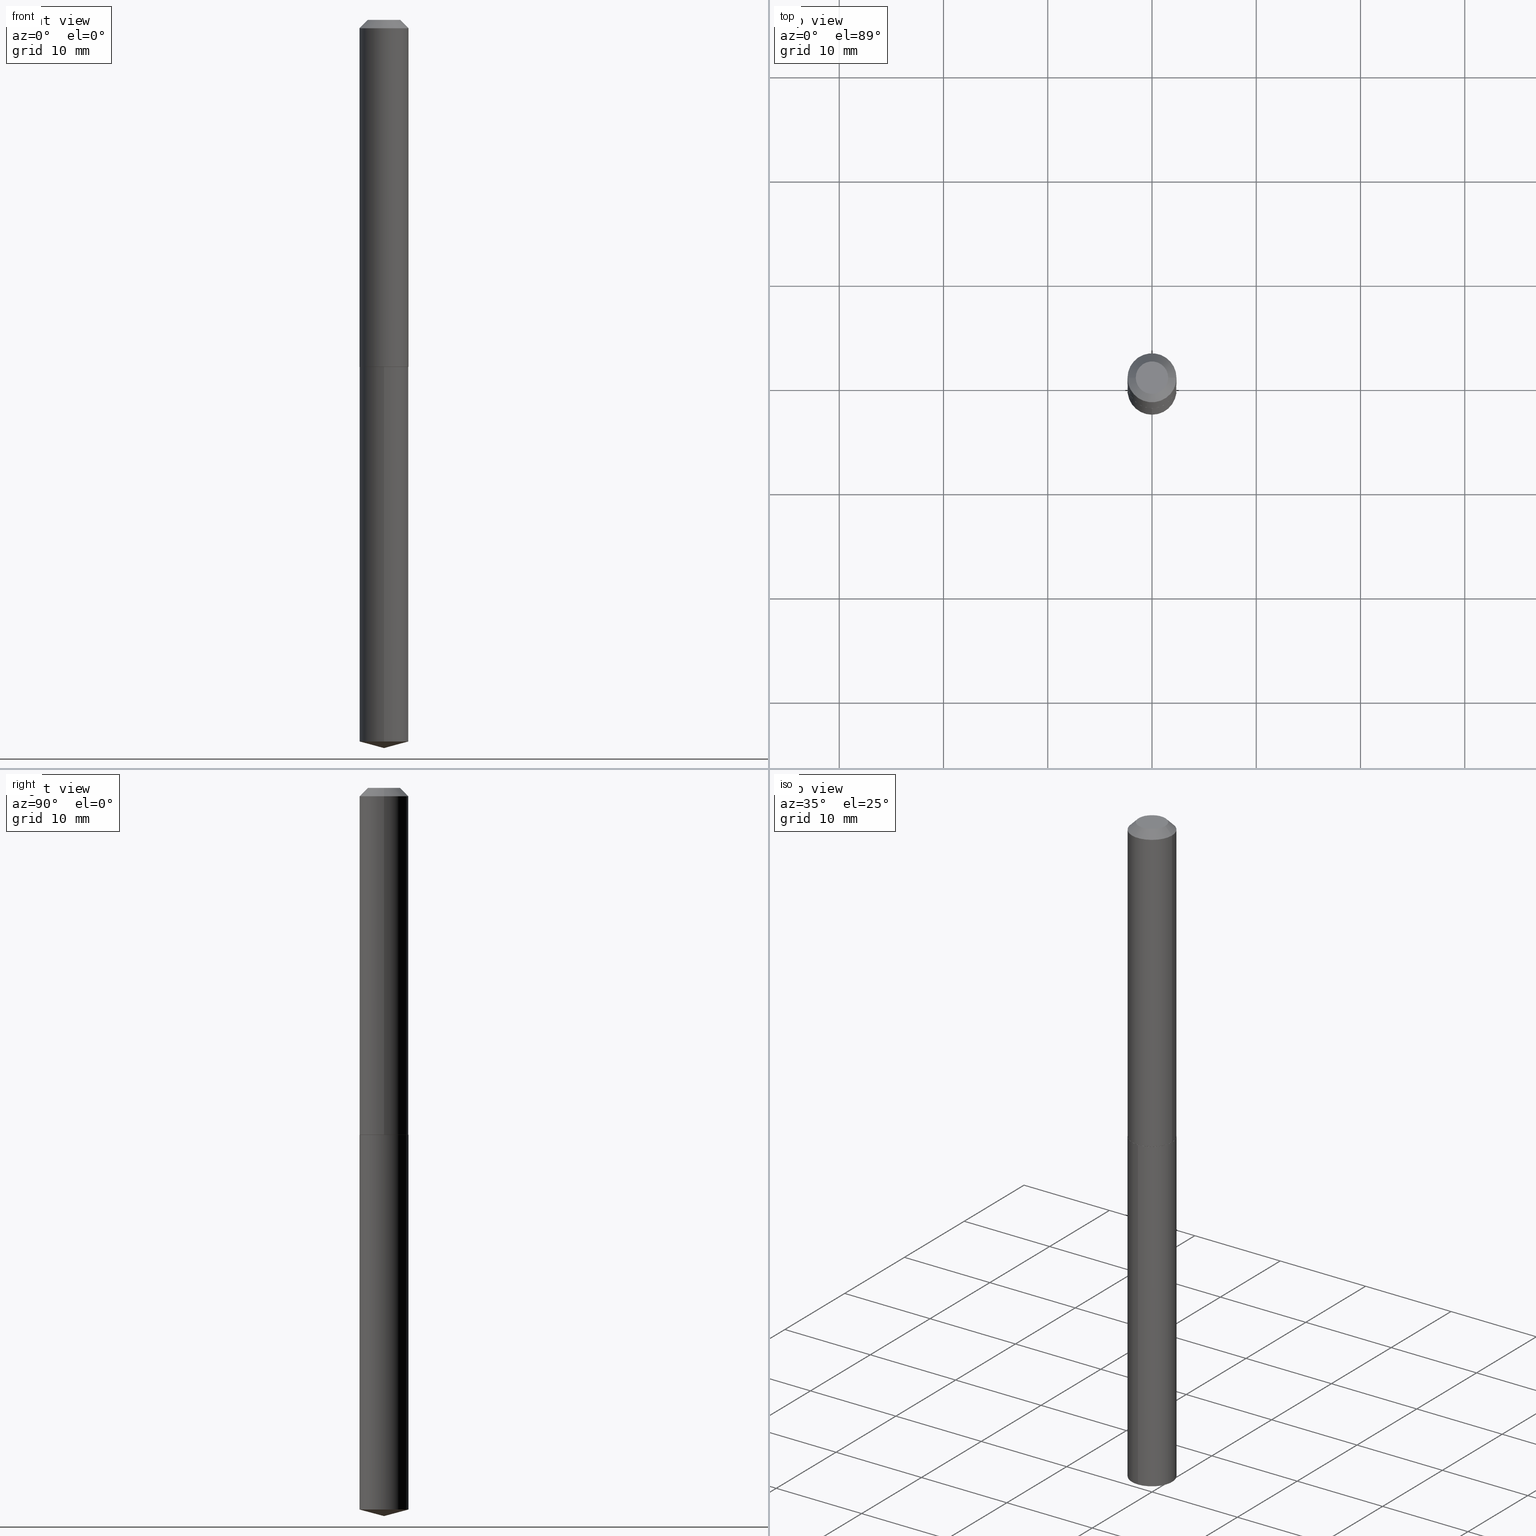
[diagram: canonical four-view strip — front | top / right | iso, engineering-drawing reading convention]
A machine part, canonical four-view strip (front | top / right | iso — engineering-drawing reading convention). The complete STEP part file that produces these views, byte-faithful:
ISO-10303-21;
HEADER;
FILE_DESCRIPTION (( 'STEP AP203' ),
    '1' );
FILE_NAME ('58039.STEP',
    '2024-04-23T00:42:35',
    ( '' ),
    ( '' ),
    'SwSTEP 2.0',
    'SolidWorks 2023',
    '' );
FILE_SCHEMA (( 'CONFIG_CONTROL_DESIGN' ));
ENDSEC;

DATA;
#1 = DIRECTION ( 'NONE',  ( -2.445468806185136597E-29, 3.491481338843145583E-15, 1.000000000000000000 ) ) ;
#2 = FACE_OUTER_BOUND ( 'NONE', #245, .T. ) ;
#3 = AXIS2_PLACEMENT_3D ( 'NONE', #276, #218, #95 ) ;
#4 = APPROVAL_DATE_TIME ( #161, #94 ) ;
#5 = ORGANIZATION ( 'UNSPECIFIED', 'UNSPECIFIED', '' ) ;
#6 = CARTESIAN_POINT ( 'NONE',  ( -6.459240476859475444E-16, -0.09250000000000457856, -1.309999999999999609 ) ) ;
#7 = EDGE_LOOP ( 'NONE', ( #28, #197, #19, #341 ) ) ;
#8 = DIRECTION ( 'NONE',  ( -6.982962677686265133E-15, -1.000000000000000000, 3.510303681827577719E-15 ) ) ;
#9 = ORIENTED_EDGE ( 'NONE', *, *, #44, .F. ) ;
#10 = EDGE_CURVE ( 'NONE', #59, #314, #199, .T. ) ;
#11 = EDGE_CURVE ( 'NONE', #278, #384, #39, .T. ) ;
#12 = DIRECTION ( 'NONE',  ( -6.745023994389845444E-15, -0.9659258262890685343, 0.2588190451025198513 ) ) ;
#13 = DIRECTION ( 'NONE',  ( -2.445429496775872932E-29, 3.491537632154564086E-15, 1.000000000000000000 ) ) ;
#14 = CIRCLE ( 'NONE', #295, 0.06125000000000000583 ) ;
#15 = CARTESIAN_POINT ( 'NONE',  ( 0.09249999999999999889, -7.550328395248286925E-16, -0.03125000000000019429 ) ) ;
#16 = DIRECTION ( 'NONE',  ( 1.000000000000000000, 0.000000000000000000, 0.000000000000000000 ) ) ;
#17 = CARTESIAN_POINT ( 'NONE',  ( 3.203564136102528897E-29, -4.573840553884520788E-15, -1.310000000000000053 ) ) ;
#18 = CIRCLE ( 'NONE', #41, 0.09249999999999999889 ) ;
#19 = ORIENTED_EDGE ( 'NONE', *, *, #44, .T. ) ;
#20 =( CONVERSION_BASED_UNIT ( 'INCH', #225 ) LENGTH_UNIT ( ) NAMED_UNIT ( #82 ) );
#21 = ORIENTED_EDGE ( 'NONE', *, *, #158, .F. ) ;
#22 = PERSON ( 'UNSPECIFIED', 'UNSPECIFIED', 'UNSPECIFIED', ('UNSPECIFIED'), ('UNSPECIFIED'), ('UNSPECIFIED') ) ;
#23 = VERTEX_POINT ( 'NONE', #131 ) ;
#24 = PERSON_AND_ORGANIZATION_ROLE ( 'creator' ) ;
#25 = AXIS2_PLACEMENT_3D ( 'NONE', #231, #293, #375 ) ;
#26 = ORIENTED_EDGE ( 'NONE', *, *, #204, .T. ) ;
#27 = CALENDAR_DATE ( 2024, 22, 4 ) ;
#28 = ORIENTED_EDGE ( 'NONE', *, *, #70, .F. ) ;
#29 = COORDINATED_UNIVERSAL_TIME_OFFSET ( 5, 0, .BEHIND. ) ;
#30 = CARTESIAN_POINT ( 'NONE',  ( 0.000000000000000000, 0.000000000000000000, 0.000000000000000000 ) ) ;
#31 = CYLINDRICAL_SURFACE ( 'NONE', #3, 0.09249999999999999889 ) ;
#32 = CALENDAR_DATE ( 2024, 22, 4 ) ;
#33 = ADVANCED_FACE ( 'NONE', ( #92 ), #31, .T. ) ;
#34 = DIRECTION ( 'NONE',  ( -2.445468806185136597E-29, 3.491481338843145583E-15, 1.000000000000000000 ) ) ;
#35 = DIRECTION ( 'NONE',  ( -6.982962677686265922E-15, -1.000000000000000000, 2.953349182339743999E-15 ) ) ;
#36 = CIRCLE ( 'NONE', #50, 0.09200000000000020661 ) ;
#37 = EDGE_CURVE ( 'NONE', #248, #314, #189, .T. ) ;
#38 = DIRECTION ( 'NONE',  ( -2.445429496775872932E-29, 3.491537632154564086E-15, 1.000000000000000000 ) ) ;
#39 = LINE ( 'NONE', #247, #325 ) ;
#40 = CARTESIAN_POINT ( 'NONE',  ( 0.09249999999999999889, -7.437048566327157189E-16, -0.03125000000000019429 ) ) ;
#41 = AXIS2_PLACEMENT_3D ( 'NONE', #258, #13, #206 ) ;
#42 = DIRECTION ( 'NONE',  ( -0.7071067811867889352, 7.493145998871226640E-15, 0.7071067811863060992 ) ) ;
#43 = DIRECTION ( 'NONE',  ( 6.982962677686265922E-15, 1.000000000000000000, -3.491537632154564086E-15 ) ) ;
#44 = EDGE_CURVE ( 'NONE', #184, #363, #129, .T. ) ;
#45 = CARTESIAN_POINT ( 'NONE',  ( 6.725035009892370584E-29, -9.601580999949136548E-15, -2.750000000000000000 ) ) ;
#46 = FACE_OUTER_BOUND ( 'NONE', #226, .T. ) ;
#47 =( NAMED_UNIT ( * ) SI_UNIT ( $, .STERADIAN. ) SOLID_ANGLE_UNIT ( ) );
#48 = DIRECTION ( 'NONE',  ( -2.445468806185136597E-29, 3.491481338843145583E-15, 1.000000000000000000 ) ) ;
#49 = CC_DESIGN_PERSON_AND_ORGANIZATION_ASSIGNMENT ( #240, #117, ( #168 ) ) ;
#50 = AXIS2_PLACEMENT_3D ( 'NONE', #288, #106, #322 ) ;
#51 = APPROVAL_PERSON_ORGANIZATION ( #264, #124, #305 ) ;
#52 = ORIENTED_EDGE ( 'NONE', *, *, #323, .F. ) ;
#53 = DATE_TIME_ROLE ( 'creation_date' ) ;
#54 = FACE_OUTER_BOUND ( 'NONE', #374, .T. ) ;
#55 = EDGE_CURVE ( 'NONE', #210, #59, #279, .T. ) ;
#56 = DIRECTION ( 'NONE',  ( -2.445468806185136597E-29, 3.491481338843145583E-15, 1.000000000000000000 ) ) ;
#57 = AXIS2_PLACEMENT_3D ( 'NONE', #175, #284, #352 ) ;
#58 = CC_DESIGN_APPROVAL ( #94, ( #357 ) ) ;
#59 = VERTEX_POINT ( 'NONE', #304 ) ;
#60 = PERSON_AND_ORGANIZATION ( #22, #5 ) ;
#61 = CARTESIAN_POINT ( 'NONE',  ( -6.459240476859475444E-16, -0.09250000000000457856, -1.309999999999999609 ) ) ;
#62 = ORIENTED_EDGE ( 'NONE', *, *, #37, .T. ) ;
#63 = PERSON_AND_ORGANIZATION_ROLE ( 'design_owner' ) ;
#64 = LINE ( 'NONE', #93, #185 ) ;
#65 = EDGE_LOOP ( 'NONE', ( #326, #220, #85 ) ) ;
#66 = DIRECTION ( 'NONE',  ( -2.445429496775872932E-29, 3.491537632154564086E-15, 1.000000000000000000 ) ) ;
#67 = DIRECTION ( 'NONE',  ( 0.7071067811865453523, -7.319954787623248157E-15, -0.7071067811865496822 ) ) ;
#68 = AXIS2_PLACEMENT_3D ( 'NONE', #17, #378, #253 ) ;
#69 = ORIENTED_EDGE ( 'NONE', *, *, #222, .T. ) ;
#70 = EDGE_CURVE ( 'NONE', #262, #209, #96, .T. ) ;
#71 = DIRECTION ( 'NONE',  ( -2.445429496775872932E-29, 3.491537632154564086E-15, 1.000000000000000000 ) ) ;
#72 = CARTESIAN_POINT ( 'NONE',  ( 0.09250000000000017930, -5.218018860901080849E-15, -1.309500000000000108 ) ) ;
#73 = CARTESIAN_POINT ( 'NONE',  ( 0.09250000000000008216, -6.459240476859802821E-16, 4.510463517611244952E-30 ) ) ;
#74 = CIRCLE ( 'NONE', #211, 0.06125000000000000583 ) ;
#75 = CARTESIAN_POINT ( 'NONE',  ( 7.642090019328598283E-31, -1.091087918388489651E-16, -0.03125000000000019429 ) ) ;
#76 = CARTESIAN_POINT ( 'NONE',  ( 0.09200000000000020661, -5.216273120231657767E-15, -1.309999999999999609 ) ) ;
#77 = DIRECTION ( 'NONE',  ( -2.445468806185136597E-29, 3.491481338843145583E-15, 1.000000000000000000 ) ) ;
#78 = AXIS2_PLACEMENT_3D ( 'NONE', #75, #48, #257 ) ;
#79 = LOCAL_TIME ( 20, 42, 35.00000000000000000, #150 ) ;
#80 = DIRECTION ( 'NONE',  ( -2.445468806185136597E-29, 3.491481338843145583E-15, 1.000000000000000000 ) ) ;
#81 = APPLICATION_CONTEXT ( 'configuration controlled 3d designs of mechanical parts and assemblies' ) ;
#82 = DIMENSIONAL_EXPONENTS ( 1.000000000000000000, 0.000000000000000000, 0.000000000000000000, 0.000000000000000000, 0.000000000000000000, 0.000000000000000000, 0.000000000000000000 ) ;
#83 = AXIS2_PLACEMENT_3D ( 'NONE', #319, #172, #86 ) ;
#84 = AXIS2_PLACEMENT_3D ( 'NONE', #238, #362, #230 ) ;
#85 = ORIENTED_EDGE ( 'NONE', *, *, #222, .F. ) ;
#86 = DIRECTION ( 'NONE',  ( 1.000000000000000000, -6.982962677686264344E-15, 0.000000000000000000 ) ) ;
#87 = APPROVAL_ROLE ( '' ) ;
#88 = DIRECTION ( 'NONE',  ( -1.000000000000000000, 6.982962677686265922E-15, -4.876176775795935793E-29 ) ) ;
#89 = DATE_AND_TIME ( #382, #79 ) ;
#90 = CYLINDRICAL_SURFACE ( 'NONE', #332, 0.09250000000000008216 ) ;
#91 = VECTOR ( 'NONE', #208, 39.37007874015748143 ) ;
#92 = FACE_OUTER_BOUND ( 'NONE', #155, .T. ) ;
#93 = CARTESIAN_POINT ( 'NONE',  ( -0.09250000000000008216, 6.572520305780932557E-16, -4.550014958485792374E-30 ) ) ;
#94 = APPROVAL ( #333, 'UNSPECIFIED' ) ;
#95 = DIRECTION ( 'NONE',  ( -6.982962677686265922E-15, -1.000000000000000000, 2.953349182339743999E-15 ) ) ;
#96 = LINE ( 'NONE', #40, #223 ) ;
#97 = ORIENTED_EDGE ( 'NONE', *, *, #132, .T. ) ;
#98 = CIRCLE ( 'NONE', #68, 0.09249999999999999889 ) ;
#99 = LOCAL_TIME ( 20, 42, 35.00000000000000000, #120 ) ;
#100 = CARTESIAN_POINT ( 'NONE',  ( 0.000000000000000000, 0.000000000000000000, 0.000000000000000000 ) ) ;
#101 = DESIGN_CONTEXT ( 'detailed design', #81, 'design' ) ;
#102 = CARTESIAN_POINT ( 'NONE',  ( 7.642090019328598283E-31, -1.091087918388489651E-16, -0.03125000000000019429 ) ) ;
#103 = ADVANCED_FACE ( 'NONE', ( #2 ), #367, .T. ) ;
#104 = FACE_OUTER_BOUND ( 'NONE', #187, .T. ) ;
#105 = AXIS2_PLACEMENT_3D ( 'NONE', #221, #366, #35 ) ;
#106 = DIRECTION ( 'NONE',  ( -2.445468806185136597E-29, 3.491481338843145583E-15, 1.000000000000000000 ) ) ;
#107 = CC_DESIGN_DATE_AND_TIME_ASSIGNMENT ( #274, #302, ( #168 ) ) ;
#108 = CARTESIAN_POINT ( 'NONE',  ( -6.459240476859128345E-16, -0.09250000000000949130, -2.725214699700120757 ) ) ;
#109 = FACE_OUTER_BOUND ( 'NONE', #242, .T. ) ;
#110 = CIRCLE ( 'NONE', #373, 0.09250000000000017930 ) ;
#111 = APPROVAL ( #369, 'UNSPECIFIED' ) ;
#112 = ORIENTED_EDGE ( 'NONE', *, *, #11, .F. ) ;
#113 = CARTESIAN_POINT ( 'NONE',  ( -4.492253318864008525E-48, 6.413747168845487133E-34, 1.836970198721037299E-19 ) ) ;
#114 = CIRCLE ( 'NONE', #78, 0.09249999999999999889 ) ;
#115 = ORIENTED_EDGE ( 'NONE', *, *, #204, .F. ) ;
#116 = ADVANCED_FACE ( 'NONE', ( #163 ), #372, .T. ) ;
#117 = PERSON_AND_ORGANIZATION_ROLE ( 'classification_officer' ) ;
#118 = FACE_OUTER_BOUND ( 'NONE', #65, .T. ) ;
#119 = EDGE_LOOP ( 'NONE', ( #195, #239 ) ) ;
#120 = COORDINATED_UNIVERSAL_TIME_OFFSET ( 5, 0, .BEHIND. ) ;
#121 = DIRECTION ( 'NONE',  ( -6.982962677686265922E-15, -1.000000000000000000, 5.906698364679487997E-15 ) ) ;
#122 = ORIENTED_EDGE ( 'NONE', *, *, #215, .F. ) ;
#123 = PERSON_AND_ORGANIZATION ( #22, #5 ) ;
#124 = APPROVAL ( #182, 'UNSPECIFIED' ) ;
#125 = CC_DESIGN_SECURITY_CLASSIFICATION ( #168, ( #357 ) ) ;
#126 = CARTESIAN_POINT ( 'NONE',  ( -8.955176923011001881E-28, 1.278604567579611010E-13, 36.62007874015748143 ) ) ;
#127 = PERSON_AND_ORGANIZATION ( #22, #5 ) ;
#128 = CARTESIAN_POINT ( 'NONE',  ( 3.202341401699436656E-29, -4.572094813215099285E-15, -1.309500000000000108 ) ) ;
#129 = LINE ( 'NONE', #250, #294 ) ;
#130 =( LENGTH_UNIT ( ) NAMED_UNIT ( * ) SI_UNIT ( $, .METRE. ) );
#131 = CARTESIAN_POINT ( 'NONE',  ( 6.724931116133648671E-29, -9.601728488425049658E-15, -2.750000000000000000 ) ) ;
#132 = EDGE_CURVE ( 'NONE', #23, #248, #346, .T. ) ;
#133 = EDGE_LOOP ( 'NONE', ( #301, #380, #198, #344 ) ) ;
#134 = VECTOR ( 'NONE', #71, 39.37007874015748143 ) ;
#135 = ORIENTED_EDGE ( 'NONE', *, *, #10, .T. ) ;
#136 = DIRECTION ( 'NONE',  ( 1.000000000000000000, -6.982962677686272233E-15, 0.000000000000000000 ) ) ;
#137 = ADVANCED_BREP_SHAPE_REPRESENTATION ( '58039', ( #159, #156, #275 ), #203 ) ;
#138 = ADVANCED_FACE ( 'NONE', ( #109 ), #356, .T. ) ;
#139 = CARTESIAN_POINT ( 'NONE',  ( 6.724931116133649792E-29, -9.601728488425049658E-15, -2.750000000000000000 ) ) ;
#140 = CIRCLE ( 'NONE', #315, 0.09249999999999999889 ) ;
#141 = LOCAL_TIME ( 20, 42, 35.00000000000000000, #29 ) ;
#142 = CARTESIAN_POINT ( 'NONE',  ( 3.203564136102528897E-29, -4.573840553884520788E-15, -1.310000000000000053 ) ) ;
#143 = CARTESIAN_POINT ( 'NONE',  ( -0.09250000000000017930, -3.914842782637005634E-15, -1.309500000000000108 ) ) ;
#144 = PRODUCT_DEFINITION ( 'UNKNOWN', '', #357, #101 ) ;
#145 = UNCERTAINTY_MEASURE_WITH_UNIT (LENGTH_MEASURE( 1.000000000000000082E-05 ), #20, 'distance_accuracy_value', 'NONE');
#146 = ORIENTED_EDGE ( 'NONE', *, *, #345, .F. ) ;
#147 = ORIENTED_EDGE ( 'NONE', *, *, #10, .F. ) ;
#148 = CC_DESIGN_PERSON_AND_ORGANIZATION_ASSIGNMENT ( #188, #24, ( #357 ) ) ;
#149 = ORIENTED_EDGE ( 'NONE', *, *, #181, .T. ) ;
#150 = COORDINATED_UNIVERSAL_TIME_OFFSET ( 5, 0, .BEHIND. ) ;
#151 = AXIS2_PLACEMENT_3D ( 'NONE', #142, #169, #43 ) ;
#152 = FACE_OUTER_BOUND ( 'NONE', #192, .T. ) ;
#153 = ORIENTED_EDGE ( 'NONE', *, *, #306, .T. ) ;
#154 = APPROVAL_ROLE ( '' ) ;
#155 = EDGE_LOOP ( 'NONE', ( #69, #224, #312, #339 ) ) ;
#156 = MANIFOLD_SOLID_BREP ( 'Body-Move/Copy2[2]', #259 ) ;
#157 = APPLICATION_PROTOCOL_DEFINITION ( 'international standard', 'config_control_design', 1994, #81 ) ;
#158 = EDGE_CURVE ( 'NONE', #209, #363, #114, .T. ) ;
#159 = MANIFOLD_SOLID_BREP ( 'Body-Move/Copy2[1]', #216 ) ;
#160 = DIRECTION ( 'NONE',  ( -2.445429496775872932E-29, 3.491537632154564086E-15, 1.000000000000000000 ) ) ;
#161 = DATE_AND_TIME ( #32, #99 ) ;
#162 = ORIENTED_EDGE ( 'NONE', *, *, #55, .F. ) ;
#163 = FACE_OUTER_BOUND ( 'NONE', #296, .T. ) ;
#164 = DIRECTION ( 'NONE',  ( 0.7071067811867889352, -2.468850131084785360E-15, 0.7071067811863060992 ) ) ;
#165 = ORIENTED_EDGE ( 'NONE', *, *, #306, .F. ) ;
#166 = CONICAL_SURFACE ( 'NONE', #217, 0.09250000000000017930, 0.7853981633977896726 ) ;
#167 = EDGE_CURVE ( 'NONE', #314, #59, #98, .T. ) ;
#168 = SECURITY_CLASSIFICATION ( '', '', #385 ) ;
#169 = DIRECTION ( 'NONE',  ( 2.445429496775872371E-29, -3.491537632154564086E-15, -1.000000000000000000 ) ) ;
#170 = DIRECTION ( 'NONE',  ( 6.863315791527699781E-15, 0.9659258262890704216, 0.2588190451025130789 ) ) ;
#171 = MECHANICAL_CONTEXT ( 'NONE', #347, 'mechanical' ) ;
#172 = DIRECTION ( 'NONE',  ( -2.445468806185136597E-29, 3.491481338843145583E-15, 1.000000000000000000 ) ) ;
#173 = VECTOR ( 'NONE', #12, 39.37007874015748143 ) ;
#174 = CC_DESIGN_APPROVAL ( #124, ( #144 ) ) ;
#175 = CARTESIAN_POINT ( 'NONE',  ( 7.642090019328598283E-31, -1.091087918388489651E-16, -0.03125000000000019429 ) ) ;
#176 = EDGE_CURVE ( 'NONE', #23, #210, #286, .T. ) ;
#177 = DIRECTION ( 'NONE',  ( 1.000000000000000000, -6.982962677686267499E-15, 4.876190086226892022E-29 ) ) ;
#178 = ADVANCED_FACE ( 'NONE', ( #104 ), #291, .F. ) ;
#179 = CIRCLE ( 'NONE', #299, 0.09250000000000017930 ) ;
#180 = AXIS2_PLACEMENT_3D ( 'NONE', #191, #183, #328 ) ;
#181 = EDGE_CURVE ( 'NONE', #273, #384, #110, .T. ) ;
#182 = APPROVAL_STATUS ( 'not_yet_approved' ) ;
#183 = DIRECTION ( 'NONE',  ( -2.445429496775872932E-29, 3.491537632154564086E-15, 1.000000000000000000 ) ) ;
#184 = VERTEX_POINT ( 'NONE', #376 ) ;
#185 = VECTOR ( 'NONE', #386, 39.37007874015748143 ) ;
#186 = LOCAL_TIME ( 20, 42, 35.00000000000000000, #361 ) ;
#187 = EDGE_LOOP ( 'NONE', ( #270, #135 ) ) ;
#188 = PERSON_AND_ORGANIZATION ( #22, #5 ) ;
#189 = LINE ( 'NONE', #6, #348 ) ;
#190 = APPROVAL_DATE_TIME ( #388, #124 ) ;
#191 = CARTESIAN_POINT ( 'NONE',  ( -8.955176923011001881E-28, 1.278604567579611010E-13, 36.62007874015748143 ) ) ;
#192 = EDGE_LOOP ( 'NONE', ( #313, #331, #165, #112 ) ) ;
#193 = DIRECTION ( 'NONE',  ( 1.000000000000000000, -6.982962677686267499E-15, 4.876176775795936353E-29 ) ) ;
#194 = AXIS2_PLACEMENT_3D ( 'NONE', #353, #379, #377 ) ;
#195 = ORIENTED_EDGE ( 'NONE', *, *, #280, .F. ) ;
#196 = CC_DESIGN_DATE_AND_TIME_ASSIGNMENT ( #89, #53, ( #144 ) ) ;
#197 = ORIENTED_EDGE ( 'NONE', *, *, #370, .F. ) ;
#198 = ORIENTED_EDGE ( 'NONE', *, *, #11, .T. ) ;
#199 = CIRCLE ( 'NONE', #105, 0.09249999999999999889 ) ;
#200 = EDGE_CURVE ( 'NONE', #363, #209, #235, .T. ) ;
#201 = CARTESIAN_POINT ( 'NONE',  ( -0.09250000000000017930, -3.914842782637005634E-15, -1.309500000000000108 ) ) ;
#202 = AXIS2_PLACEMENT_3D ( 'NONE', #214, #390, #88 ) ;
#203 =( GEOMETRIC_REPRESENTATION_CONTEXT ( 3 ) GLOBAL_UNCERTAINTY_ASSIGNED_CONTEXT ( ( #145 ) ) GLOBAL_UNIT_ASSIGNED_CONTEXT ( ( #20, #290, #47 ) ) REPRESENTATION_CONTEXT ( 'NONE', 'WORKASPACE' ) );
#204 = EDGE_CURVE ( 'NONE', #262, #184, #74, .T. ) ;
#205 = CARTESIAN_POINT ( 'NONE',  ( 3.202341401699436656E-29, -4.572094813215099285E-15, -1.309500000000000108 ) ) ;
#206 = DIRECTION ( 'NONE',  ( -6.982962677686265922E-15, -1.000000000000000000, 5.906698364679487997E-15 ) ) ;
#207 = CARTESIAN_POINT ( 'NONE',  ( 0.06125000000000000583, -5.819551794981109879E-16, 1.836970198756335021E-19 ) ) ;
#208 = DIRECTION ( 'NONE',  ( -2.445468806185136877E-29, 3.491481338843145188E-15, 1.000000000000000000 ) ) ;
#209 = VERTEX_POINT ( 'NONE', #15 ) ;
#210 = VERTEX_POINT ( 'NONE', #229 ) ;
#211 = AXIS2_PLACEMENT_3D ( 'NONE', #317, #77, #177 ) ;
#212 = ORIENTED_EDGE ( 'NONE', *, *, #158, .T. ) ;
#213 = CALENDAR_DATE ( 2024, 22, 4 ) ;
#214 = CARTESIAN_POINT ( 'NONE',  ( -2.246126659432004262E-48, 3.206873584422743567E-34, 9.184850993605186494E-20 ) ) ;
#215 = EDGE_CURVE ( 'NONE', #384, #209, #350, .T. ) ;
#216 = CLOSED_SHELL ( 'NONE', ( #33, #359, #103, #138, #178 ) ) ;
#217 = AXIS2_PLACEMENT_3D ( 'NONE', #360, #310, #383 ) ;
#218 = DIRECTION ( 'NONE',  ( -2.445429496775872932E-29, 3.491537632154564086E-15, 1.000000000000000000 ) ) ;
#219 = COORDINATED_UNIVERSAL_TIME_OFFSET ( 5, 0, .BEHIND. ) ;
#220 = ORIENTED_EDGE ( 'NONE', *, *, #176, .T. ) ;
#221 = CARTESIAN_POINT ( 'NONE',  ( 3.203564136102528897E-29, -4.573840553884520788E-15, -1.310000000000000053 ) ) ;
#222 = EDGE_CURVE ( 'NONE', #248, #210, #18, .T. ) ;
#223 = VECTOR ( 'NONE', #67, 39.37007874015748143 ) ;
#224 = ORIENTED_EDGE ( 'NONE', *, *, #55, .T. ) ;
#225 = LENGTH_MEASURE_WITH_UNIT ( LENGTH_MEASURE( 0.02539999999999999897 ), #130 );
#226 = EDGE_LOOP ( 'NONE', ( #115, #336, #212, #9 ) ) ;
#227 = LINE ( 'NONE', #201, #255 ) ;
#228 = PRODUCT ( '58039', '58039', '', ( #171 ) ) ;
#229 = CARTESIAN_POINT ( 'NONE',  ( 6.572520305781590270E-16, 0.09249999999999047873, -2.725214699700122090 ) ) ;
#230 = DIRECTION ( 'NONE',  ( 1.000000000000000000, -6.982962677686265922E-15, 4.876176775795935793E-29 ) ) ;
#231 = CARTESIAN_POINT ( 'NONE',  ( 7.642090019328598283E-31, -1.091087918388489651E-16, -0.03125000000000019429 ) ) ;
#232 = DIRECTION ( 'NONE',  ( -2.445468806185136597E-29, 3.491481338843145583E-15, 1.000000000000000000 ) ) ;
#233 = EDGE_CURVE ( 'NONE', #387, #278, #36, .T. ) ;
#234 = APPLICATION_PROTOCOL_DEFINITION ( 'international standard', 'config_control_design', 1994, #347 ) ;
#235 = CIRCLE ( 'NONE', #358, 0.09249999999999999889 ) ;
#236 = CARTESIAN_POINT ( 'NONE',  ( 6.664371907020014015E-29, -9.515115935465815884E-15, -2.725214699700121646 ) ) ;
#237 = CALENDAR_DATE ( 2024, 22, 4 ) ;
#238 = CARTESIAN_POINT ( 'NONE',  ( 3.203564136102528897E-29, -4.573840553884520788E-15, -1.310000000000000053 ) ) ;
#239 = ORIENTED_EDGE ( 'NONE', *, *, #233, .F. ) ;
#240 = PERSON_AND_ORGANIZATION ( #22, #5 ) ;
#241 = CARTESIAN_POINT ( 'NONE',  ( 3.202341401699436656E-29, -4.572094813215099285E-15, -1.309500000000000108 ) ) ;
#242 = EDGE_LOOP ( 'NONE', ( #162, #298, #62, #147 ) ) ;
#243 = SHAPE_DEFINITION_REPRESENTATION ( #365, #137 ) ;
#244 = AXIS2_PLACEMENT_3D ( 'NONE', #241, #56, #364 ) ;
#245 = EDGE_LOOP ( 'NONE', ( #263, #97, #52 ) ) ;
#246 = DATE_AND_TIME ( #213, #141 ) ;
#247 = CARTESIAN_POINT ( 'NONE',  ( 0.09250000000000017930, -5.218018860901080849E-15, -1.309500000000000108 ) ) ;
#248 = VERTEX_POINT ( 'NONE', #108 ) ;
#249 = CIRCLE ( 'NONE', #83, 0.09200000000000020661 ) ;
#250 = CARTESIAN_POINT ( 'NONE',  ( -0.09249999999999999889, 5.368152558471307870E-16, -0.03125000000000019429 ) ) ;
#251 = PRODUCT_RELATED_PRODUCT_CATEGORY ( 'detail', '', ( #228 ) ) ;
#252 = DIRECTION ( 'NONE',  ( 1.000000000000000000, -6.982962677686267499E-15, 4.876176775795936353E-29 ) ) ;
#253 = DIRECTION ( 'NONE',  ( -6.982962677686265922E-15, -1.000000000000000000, 2.953349182339743999E-15 ) ) ;
#254 = DIRECTION ( 'NONE',  ( 1.000000000000000000, -6.982962677686266711E-15, 0.000000000000000000 ) ) ;
#255 = VECTOR ( 'NONE', #42, 39.37007874015748143 ) ;
#256 = CARTESIAN_POINT ( 'NONE',  ( 0.000000000000000000, 0.000000000000000000, 0.000000000000000000 ) ) ;
#257 = DIRECTION ( 'NONE',  ( 1.000000000000000000, -6.982962677686266711E-15, 0.000000000000000000 ) ) ;
#258 = CARTESIAN_POINT ( 'NONE',  ( 6.664371907020014015E-29, -9.515115935465815884E-15, -2.725214699700121646 ) ) ;
#259 = CLOSED_SHELL ( 'NONE', ( #271, #116, #335, #381, #354, #351, #260, #285 ) ) ;
#260 = ADVANCED_FACE ( 'NONE', ( #316 ), #355, .T. ) ;
#261 = EDGE_CURVE ( 'NONE', #387, #273, #227, .T. ) ;
#262 = VERTEX_POINT ( 'NONE', #207 ) ;
#263 = ORIENTED_EDGE ( 'NONE', *, *, #176, .F. ) ;
#264 = PERSON_AND_ORGANIZATION ( #22, #5 ) ;
#265 = ORIENTED_EDGE ( 'NONE', *, *, #215, .T. ) ;
#266 = PERSON_AND_ORGANIZATION_ROLE ( 'design_supplier' ) ;
#267 = APPROVAL_PERSON_ORGANIZATION ( #123, #94, #154 ) ;
#268 = PLANE ( 'NONE',  #84 ) ;
#269 = PERSON_AND_ORGANIZATION ( #22, #5 ) ;
#270 = ORIENTED_EDGE ( 'NONE', *, *, #167, .T. ) ;
#271 = ADVANCED_FACE ( 'NONE', ( #46 ), #289, .T. ) ;
#272 = DIRECTION ( 'NONE',  ( 1.000000000000000000, -6.982962677686267499E-15, 4.876190086226892022E-29 ) ) ;
#273 = VERTEX_POINT ( 'NONE', #143 ) ;
#274 = DATE_AND_TIME ( #27, #186 ) ;
#275 = AXIS2_PLACEMENT_3D ( 'NONE', #256, #292, #16 ) ;
#276 = CARTESIAN_POINT ( 'NONE',  ( 3.203564136102528897E-29, -4.573840553884520788E-15, -1.310000000000000053 ) ) ;
#277 = CARTESIAN_POINT ( 'NONE',  ( -0.09200000000000020661, -3.917492009811115258E-15, -1.309999999999999609 ) ) ;
#278 = VERTEX_POINT ( 'NONE', #76 ) ;
#279 = LINE ( 'NONE', #283, #134 ) ;
#280 = EDGE_CURVE ( 'NONE', #278, #387, #249, .T. ) ;
#281 = CONICAL_SURFACE ( 'NONE', #244, 0.09250000000000017930, 0.7853981633977896726 ) ;
#282 = CONICAL_SURFACE ( 'NONE', #180, 146.9311341562576274, 1.308996938995751647 ) ;
#283 = CARTESIAN_POINT ( 'NONE',  ( 6.572520305781246129E-16, 0.09249999999999543310, -1.310000000000000275 ) ) ;
#284 = DIRECTION ( 'NONE',  ( 2.445468806185136597E-29, -3.491481338843145583E-15, -1.000000000000000000 ) ) ;
#285 = ADVANCED_FACE ( 'NONE', ( #54 ), #334, .F. ) ;
#286 = LINE ( 'NONE', #45, #320 ) ;
#287 = CC_DESIGN_PERSON_AND_ORGANIZATION_ASSIGNMENT ( #327, #63, ( #228 ) ) ;
#288 = CARTESIAN_POINT ( 'NONE',  ( 3.203564136102528336E-29, -4.573840553884519999E-15, -1.309999999999999609 ) ) ;
#289 = CONICAL_SURFACE ( 'NONE', #57, 0.09249999999999999889, 0.7853981633974452814 ) ;
#290 =( NAMED_UNIT ( * ) PLANE_ANGLE_UNIT ( ) SI_UNIT ( $, .RADIAN. ) );
#291 = PLANE ( 'NONE',  #151 ) ;
#292 = DIRECTION ( 'NONE',  ( 0.000000000000000000, 0.000000000000000000, 1.000000000000000000 ) ) ;
#293 = DIRECTION ( 'NONE',  ( 2.445468806185136597E-29, -3.491481338843145583E-15, -1.000000000000000000 ) ) ;
#294 = VECTOR ( 'NONE', #371, 39.37007874015748143 ) ;
#295 = AXIS2_PLACEMENT_3D ( 'NONE', #113, #1, #272 ) ;
#296 = EDGE_LOOP ( 'NONE', ( #153, #324, #21, #122 ) ) ;
#297 = FACE_OUTER_BOUND ( 'NONE', #119, .T. ) ;
#298 = ORIENTED_EDGE ( 'NONE', *, *, #323, .T. ) ;
#299 = AXIS2_PLACEMENT_3D ( 'NONE', #128, #340, #303 ) ;
#300 = APPROVAL_PERSON_ORGANIZATION ( #127, #111, #87 ) ;
#301 = ORIENTED_EDGE ( 'NONE', *, *, #261, .F. ) ;
#302 = DATE_TIME_ROLE ( 'classification_date' ) ;
#303 = DIRECTION ( 'NONE',  ( 1.000000000000000000, -6.982962677686272233E-15, 0.000000000000000000 ) ) ;
#304 = CARTESIAN_POINT ( 'NONE',  ( 6.572520305781594214E-16, 0.09249999999999543310, -1.310000000000000275 ) ) ;
#305 = APPROVAL_ROLE ( '' ) ;
#306 = EDGE_CURVE ( 'NONE', #384, #273, #179, .T. ) ;
#307 = CARTESIAN_POINT ( 'NONE',  ( -0.09249999999999999889, -1.683349771948880148E-15, -0.03125000000000019429 ) ) ;
#308 = ORIENTED_EDGE ( 'NONE', *, *, #200, .F. ) ;
#309 = AXIS2_PLACEMENT_3D ( 'NONE', #126, #38, #8 ) ;
#310 = DIRECTION ( 'NONE',  ( -2.445468806185136597E-29, 3.491481338843145583E-15, 1.000000000000000000 ) ) ;
#311 = LOCAL_TIME ( 20, 42, 35.00000000000000000, #219 ) ;
#312 = ORIENTED_EDGE ( 'NONE', *, *, #167, .F. ) ;
#313 = ORIENTED_EDGE ( 'NONE', *, *, #280, .T. ) ;
#314 = VERTEX_POINT ( 'NONE', #61 ) ;
#315 = AXIS2_PLACEMENT_3D ( 'NONE', #236, #66, #121 ) ;
#316 = FACE_OUTER_BOUND ( 'NONE', #7, .T. ) ;
#317 = CARTESIAN_POINT ( 'NONE',  ( -4.492253318864008525E-48, 6.413747168845487133E-34, 1.836970198721037299E-19 ) ) ;
#318 = CC_DESIGN_PERSON_AND_ORGANIZATION_ASSIGNMENT ( #269, #266, ( #357 ) ) ;
#319 = CARTESIAN_POINT ( 'NONE',  ( 3.203564136102528336E-29, -4.573840553884519999E-15, -1.309999999999999609 ) ) ;
#320 = VECTOR ( 'NONE', #170, 39.37007874015748854 ) ;
#321 = DIRECTION ( 'NONE',  ( -2.445468806185136597E-29, 3.491481338843145583E-15, 1.000000000000000000 ) ) ;
#322 = DIRECTION ( 'NONE',  ( 1.000000000000000000, -6.982962677686264344E-15, 0.000000000000000000 ) ) ;
#323 = EDGE_CURVE ( 'NONE', #210, #248, #140, .T. ) ;
#324 = ORIENTED_EDGE ( 'NONE', *, *, #345, .T. ) ;
#325 = VECTOR ( 'NONE', #164, 39.37007874015748143 ) ;
#326 = ORIENTED_EDGE ( 'NONE', *, *, #132, .F. ) ;
#327 = PERSON_AND_ORGANIZATION ( #22, #5 ) ;
#328 = DIRECTION ( 'NONE',  ( -6.982962677686265133E-15, -1.000000000000000000, 3.510303681827577719E-15 ) ) ;
#329 = APPROVAL_DATE_TIME ( #246, #111 ) ;
#330 = FACE_OUTER_BOUND ( 'NONE', #133, .T. ) ;
#331 = ORIENTED_EDGE ( 'NONE', *, *, #261, .T. ) ;
#332 = AXIS2_PLACEMENT_3D ( 'NONE', #30, #34, #193 ) ;
#333 = APPROVAL_STATUS ( 'not_yet_approved' ) ;
#334 = PLANE ( 'NONE',  #202 ) ;
#335 = ADVANCED_FACE ( 'NONE', ( #152 ), #281, .T. ) ;
#336 = ORIENTED_EDGE ( 'NONE', *, *, #70, .T. ) ;
#337 = PERSON_AND_ORGANIZATION_ROLE ( 'creator' ) ;
#338 = FACE_OUTER_BOUND ( 'NONE', #368, .T. ) ;
#339 = ORIENTED_EDGE ( 'NONE', *, *, #37, .F. ) ;
#340 = DIRECTION ( 'NONE',  ( -2.445468806185136597E-29, 3.491481338843145583E-15, 1.000000000000000000 ) ) ;
#341 = ORIENTED_EDGE ( 'NONE', *, *, #200, .T. ) ;
#342 = AXIS2_PLACEMENT_3D ( 'NONE', #100, #232, #252 ) ;
#343 = ORIENTED_EDGE ( 'NONE', *, *, #370, .T. ) ;
#344 = ORIENTED_EDGE ( 'NONE', *, *, #181, .F. ) ;
#345 = EDGE_CURVE ( 'NONE', #273, #363, #64, .T. ) ;
#346 = LINE ( 'NONE', #139, #173 ) ;
#347 = APPLICATION_CONTEXT ( 'configuration controlled 3d designs of mechanical parts and assemblies' ) ;
#348 = VECTOR ( 'NONE', #160, 39.37007874015748143 ) ;
#349 = CC_DESIGN_APPROVAL ( #111, ( #168 ) ) ;
#350 = LINE ( 'NONE', #73, #91 ) ;
#351 = ADVANCED_FACE ( 'NONE', ( #338 ), #90, .T. ) ;
#352 = DIRECTION ( 'NONE',  ( -1.000000000000000000, 6.982962677686266711E-15, 0.000000000000000000 ) ) ;
#353 = CARTESIAN_POINT ( 'NONE',  ( 3.203564136102528897E-29, -4.573840553884520788E-15, -1.310000000000000053 ) ) ;
#354 = ADVANCED_FACE ( 'NONE', ( #330 ), #166, .T. ) ;
#355 = CONICAL_SURFACE ( 'NONE', #25, 0.09249999999999999889, 0.7853981633974452814 ) ;
#356 = CYLINDRICAL_SURFACE ( 'NONE', #194, 0.09249999999999999889 ) ;
#357 = PRODUCT_DEFINITION_FORMATION_WITH_SPECIFIED_SOURCE ( 'ANY', '', #228, .NOT_KNOWN. ) ;
#358 = AXIS2_PLACEMENT_3D ( 'NONE', #102, #321, #254 ) ;
#359 = ADVANCED_FACE ( 'NONE', ( #118 ), #282, .T. ) ;
#360 = CARTESIAN_POINT ( 'NONE',  ( 3.202341401699436656E-29, -4.572094813215099285E-15, -1.309500000000000108 ) ) ;
#361 = COORDINATED_UNIVERSAL_TIME_OFFSET ( 5, 0, .BEHIND. ) ;
#362 = DIRECTION ( 'NONE',  ( -2.438088387897960049E-29, 3.491481338843145188E-15, 1.000000000000000000 ) ) ;
#363 = VERTEX_POINT ( 'NONE', #307 ) ;
#364 = DIRECTION ( 'NONE',  ( 1.000000000000000000, -6.982962677686272233E-15, 0.000000000000000000 ) ) ;
#365 = PRODUCT_DEFINITION_SHAPE ( 'NONE', 'NONE',  #144 ) ;
#366 = DIRECTION ( 'NONE',  ( -2.445429496775872932E-29, 3.491537632154564086E-15, 1.000000000000000000 ) ) ;
#367 = CONICAL_SURFACE ( 'NONE', #309, 146.9311341562576274, 1.308996938995751647 ) ;
#368 = EDGE_LOOP ( 'NONE', ( #146, #149, #265, #308 ) ) ;
#369 = APPROVAL_STATUS ( 'not_yet_approved' ) ;
#370 = EDGE_CURVE ( 'NONE', #184, #262, #14, .T. ) ;
#371 = DIRECTION ( 'NONE',  ( -0.7071067811865453523, 2.468850131082234184E-15, -0.7071067811865496822 ) ) ;
#372 = CYLINDRICAL_SURFACE ( 'NONE', #342, 0.09250000000000008216 ) ;
#373 = AXIS2_PLACEMENT_3D ( 'NONE', #205, #80, #136 ) ;
#374 = EDGE_LOOP ( 'NONE', ( #343, #26 ) ) ;
#375 = DIRECTION ( 'NONE',  ( -1.000000000000000000, 6.982962677686266711E-15, 0.000000000000000000 ) ) ;
#376 = CARTESIAN_POINT ( 'NONE',  ( -0.06125000000000000583, 4.822608599277073214E-16, 1.836970198689220695E-19 ) ) ;
#377 = DIRECTION ( 'NONE',  ( -6.982962677686265922E-15, -1.000000000000000000, 2.953349182339743999E-15 ) ) ;
#378 = DIRECTION ( 'NONE',  ( -2.445429496775872932E-29, 3.491537632154564086E-15, 1.000000000000000000 ) ) ;
#379 = DIRECTION ( 'NONE',  ( -2.445429496775872932E-29, 3.491537632154564086E-15, 1.000000000000000000 ) ) ;
#380 = ORIENTED_EDGE ( 'NONE', *, *, #233, .T. ) ;
#381 = ADVANCED_FACE ( 'NONE', ( #297 ), #268, .F. ) ;
#382 = CALENDAR_DATE ( 2024, 22, 4 ) ;
#383 = DIRECTION ( 'NONE',  ( 1.000000000000000000, -6.982962677686272233E-15, 0.000000000000000000 ) ) ;
#384 = VERTEX_POINT ( 'NONE', #72 ) ;
#385 = SECURITY_CLASSIFICATION_LEVEL ( 'unclassified' ) ;
#386 = DIRECTION ( 'NONE',  ( -2.445468806185136877E-29, 3.491481338843145188E-15, 1.000000000000000000 ) ) ;
#387 = VERTEX_POINT ( 'NONE', #277 ) ;
#388 = DATE_AND_TIME ( #237, #311 ) ;
#389 = CC_DESIGN_PERSON_AND_ORGANIZATION_ASSIGNMENT ( #60, #337, ( #144 ) ) ;
#390 = DIRECTION ( 'NONE',  ( 2.438088387897960049E-29, -3.491481338843145188E-15, -1.000000000000000000 ) ) ;
ENDSEC;
END-ISO-10303-21;
